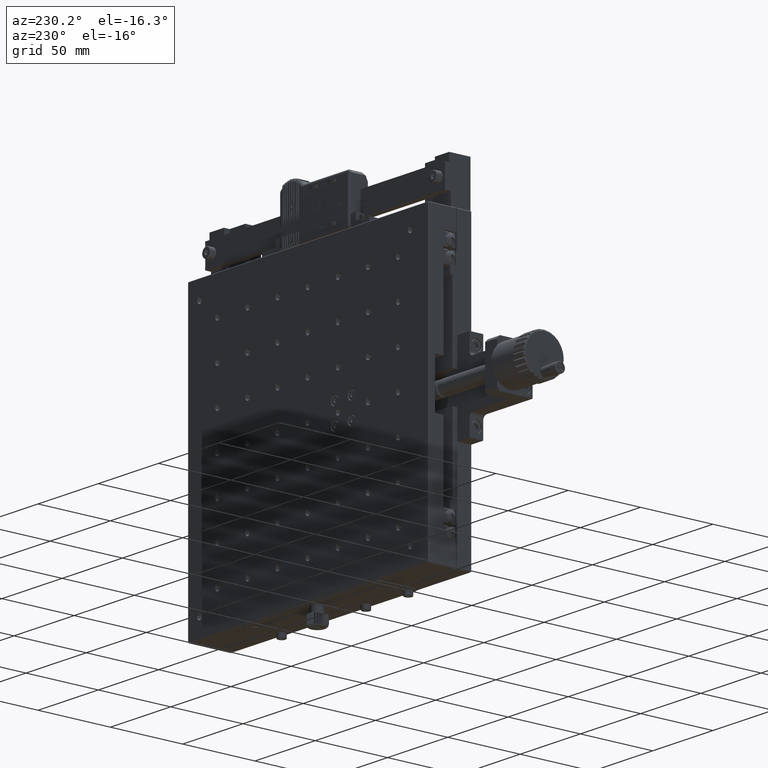
[diagram: clean part render]
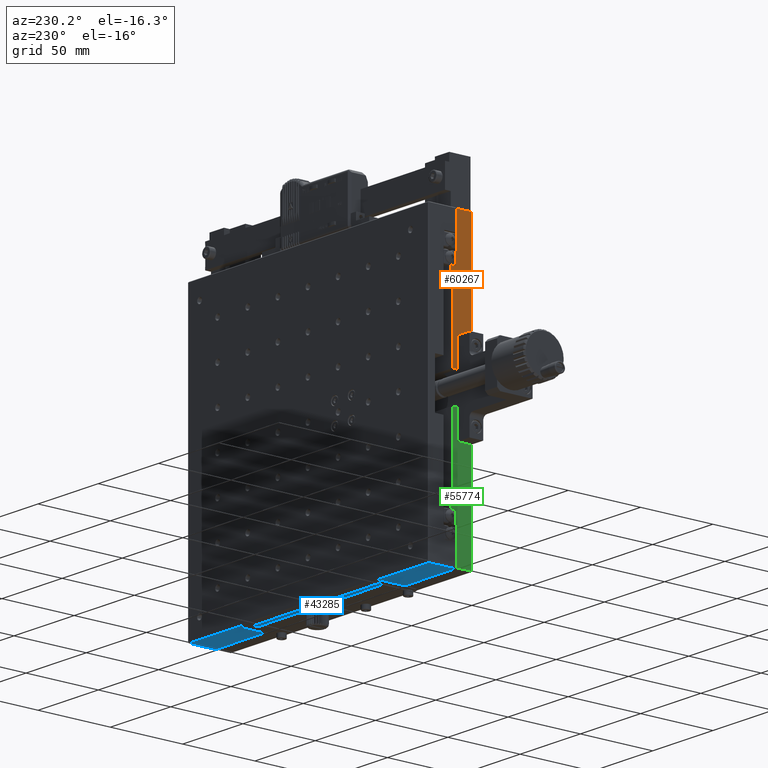
[diagram: same view with three faces highlighted in distinct colors, each labeled with its STEP entity id]
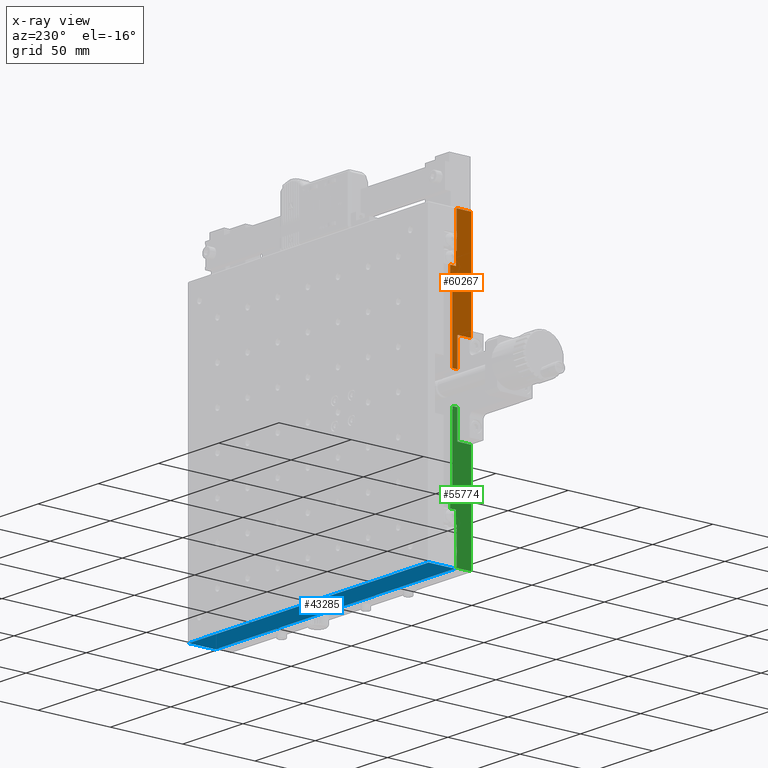
[diagram: x-ray of the same camera — body ghosted, the three highlighted faces saturated]
A machine part, auxiliary view with three faces highlighted in distinct colors.
The next image is the same camera in x-ray (body ghosted, the three faces saturated) — at least one of them is partly hidden behind the body in this view.
Their STEP definitions:

[orange] entity #60267 — the highlighted planar face has unit normal (1, 0, 0).
#1617 = DIRECTION ( 'NONE',  ( 1.000000000000000000, 0.000000000000000000, 0.000000000000000000 ) ) ;
#1638 = CARTESIAN_POINT ( 'NONE',  ( -200.0000000000000000, 11.00000000000000000, 0.000000000000000000 ) ) ;
#1938 = VECTOR ( 'NONE', #56295, 1000.000000000000000 ) ;
#2000 = LINE ( 'NONE', #58708, #4654 ) ;
#2171 = ORIENTED_EDGE ( 'NONE', *, *, #40458, .F. ) ;
#2567 = CARTESIAN_POINT ( 'NONE',  ( -200.0000000000000000, 0.4999999999999997780, 100.0000000000000000 ) ) ;
#2950 = PLANE ( 'NONE',  #22174 ) ;
#3350 = EDGE_CURVE ( 'NONE', #48882, #51860, #45151, .T. ) ;
#4654 = VECTOR ( 'NONE', #44155, 1000.000000000000000 ) ;
#4940 = EDGE_CURVE ( 'NONE', #18773, #10322, #39946, .T. ) ;
#5168 = DIRECTION ( 'NONE',  ( -0.000000000000000000, 1.000000000000000000, 0.000000000000000000 ) ) ;
#6462 = CARTESIAN_POINT ( 'NONE',  ( -200.0000000000000000, 10.50000000000000000, 75.79999999999999716 ) ) ;
#7105 = LINE ( 'NONE', #22630, #65427 ) ;
#7795 = EDGE_CURVE ( 'NONE', #55398, #40615, #7105, .T. ) ;
#7901 = CARTESIAN_POINT ( 'NONE',  ( -200.0000000000000000, 10.50000000000000000, 99.50000000000000000 ) ) ;
#7965 = ORIENTED_EDGE ( 'NONE', *, *, #62439, .F. ) ;
#8216 = ORIENTED_EDGE ( 'NONE', *, *, #3350, .F. ) ;
#9074 = VERTEX_POINT ( 'NONE', #21071 ) ;
#10322 = VERTEX_POINT ( 'NONE', #39026 ) ;
#10496 = CARTESIAN_POINT ( 'NONE',  ( -200.0000000000000000, 13.50000000000000000, 62.50000000000000000 ) ) ;
#10674 = EDGE_CURVE ( 'NONE', #34751, #48882, #29367, .T. ) ;
#11546 = LINE ( 'NONE', #20984, #43664 ) ;
#12963 = DIRECTION ( 'NONE',  ( 0.000000000000000000, 1.000000000000000000, 0.000000000000000000 ) ) ;
#13100 = ORIENTED_EDGE ( 'NONE', *, *, #38533, .F. ) ;
#13411 = FACE_OUTER_BOUND ( 'NONE', #24402, .T. ) ;
#14016 = DIRECTION ( 'NONE',  ( -0.000000000000000000, -0.000000000000000000, -1.000000000000000000 ) ) ;
#14532 = CARTESIAN_POINT ( 'NONE',  ( -200.0000000000000000, 0.000000000000000000, 10.50000000000000000 ) ) ;
#14718 = VECTOR ( 'NONE', #5168, 1000.000000000000000 ) ;
#16044 = CARTESIAN_POINT ( 'NONE',  ( -200.0000000000000000, 15.00000000000000000, 67.50000000000000000 ) ) ;
#17961 = ORIENTED_EDGE ( 'NONE', *, *, #39034, .F. ) ;
#18773 = VERTEX_POINT ( 'NONE', #16044 ) ;
#19594 = DIRECTION ( 'NONE',  ( -0.000000000000000000, 1.000000000000000000, 0.000000000000000000 ) ) ;
#19850 = CARTESIAN_POINT ( 'NONE',  ( -200.0000000000000000, 13.50000000000000000, 10.50000000000000000 ) ) ;
#20043 = CARTESIAN_POINT ( 'NONE',  ( -200.0000000000000000, 15.00000000000000000, 0.000000000000000000 ) ) ;
#20984 = CARTESIAN_POINT ( 'NONE',  ( -200.0000000000000000, 10.00000000000000000, 0.000000000000000000 ) ) ;
#21071 = CARTESIAN_POINT ( 'NONE',  ( -200.0000000000000000, 15.00000000000000000, 62.50000000000000000 ) ) ;
#22174 = AXIS2_PLACEMENT_3D ( 'NONE', #52924, #1617, #22862 ) ;
#22630 = CARTESIAN_POINT ( 'NONE',  ( -200.0000000000000000, 0.000000000000000000, 99.50000000000000000 ) ) ;
#22862 = DIRECTION ( 'NONE',  ( 0.000000000000000000, 0.000000000000000000, -1.000000000000000000 ) ) ;
#23467 = LINE ( 'NONE', #2567, #31099 ) ;
#23618 = VERTEX_POINT ( 'NONE', #33697 ) ;
#23765 = EDGE_CURVE ( 'NONE', #25570, #55398, #25891, .T. ) ;
#24402 = EDGE_LOOP ( 'NONE', ( #8216, #27441, #17961, #2171, #13100, #30898, #63004, #41077, #7965, #63269, #65424, #44456 ) ) ;
#25069 = LINE ( 'NONE', #51409, #14718 ) ;
#25570 = VERTEX_POINT ( 'NONE', #6462 ) ;
#25891 = LINE ( 'NONE', #41097, #1938 ) ;
#26923 = VECTOR ( 'NONE', #40261, 1000.000000000000000 ) ;
#27342 = DIRECTION ( 'NONE',  ( 0.000000000000000000, -1.000000000000000000, -0.000000000000000000 ) ) ;
#27441 = ORIENTED_EDGE ( 'NONE', *, *, #10674, .F. ) ;
#28136 = LINE ( 'NONE', #49052, #66435 ) ;
#29002 = CARTESIAN_POINT ( 'NONE',  ( -200.0000000000000000, 10.00000000000000000, 10.50000000000000000 ) ) ;
#29367 = LINE ( 'NONE', #14532, #31137 ) ;
#30898 = ORIENTED_EDGE ( 'NONE', *, *, #7795, .F. ) ;
#31099 = VECTOR ( 'NONE', #14016, 1000.000000000000000 ) ;
#31137 = VECTOR ( 'NONE', #19594, 1000.000000000000000 ) ;
#32907 = EDGE_CURVE ( 'NONE', #23618, #25570, #2000, .T. ) ;
#33350 = VECTOR ( 'NONE', #61570, 1000.000000000000000 ) ;
#33697 = CARTESIAN_POINT ( 'NONE',  ( -200.0000000000000000, 11.00000000000000000, 75.79999999999999716 ) ) ;
#34751 = VERTEX_POINT ( 'NONE', #29002 ) ;
#35562 = VERTEX_POINT ( 'NONE', #37231 ) ;
#36401 = DIRECTION ( 'NONE',  ( -0.000000000000000000, -0.000000000000000000, 1.000000000000000000 ) ) ;
#37231 = CARTESIAN_POINT ( 'NONE',  ( -200.0000000000000000, 0.5000000000000002220, 29.50000000000000000 ) ) ;
#38533 = EDGE_CURVE ( 'NONE', #40615, #35562, #23467, .T. ) ;
#39026 = CARTESIAN_POINT ( 'NONE',  ( -200.0000000000000000, 11.00000000000000000, 67.50000000000000000 ) ) ;
#39034 = EDGE_CURVE ( 'NONE', #66359, #34751, #11546, .T. ) ;
#39946 = LINE ( 'NONE', #60865, #26923 ) ;
#40261 = DIRECTION ( 'NONE',  ( 0.000000000000000000, -1.000000000000000000, -0.000000000000000000 ) ) ;
#40458 = EDGE_CURVE ( 'NONE', #35562, #66359, #25069, .T. ) ;
#40615 = VERTEX_POINT ( 'NONE', #56830 ) ;
#41077 = ORIENTED_EDGE ( 'NONE', *, *, #32907, .F. ) ;
#41097 = CARTESIAN_POINT ( 'NONE',  ( -200.0000000000000000, 10.50000000000000000, 0.000000000000000000 ) ) ;
#42806 = LINE ( 'NONE', #1638, #59060 ) ;
#43473 = EDGE_CURVE ( 'NONE', #9074, #18773, #66313, .T. ) ;
#43664 = VECTOR ( 'NONE', #47653, 1000.000000000000000 ) ;
#44155 = DIRECTION ( 'NONE',  ( 0.000000000000000000, -1.000000000000000000, -0.000000000000000000 ) ) ;
#44456 = ORIENTED_EDGE ( 'NONE', *, *, #59113, .F. ) ;
#45151 = LINE ( 'NONE', #45478, #45665 ) ;
#45478 = CARTESIAN_POINT ( 'NONE',  ( -200.0000000000000000, 13.50000000000000000, 0.000000000000000000 ) ) ;
#45665 = VECTOR ( 'NONE', #65104, 1000.000000000000000 ) ;
#47653 = DIRECTION ( 'NONE',  ( 0.000000000000000000, 0.000000000000000000, -1.000000000000000000 ) ) ;
#48882 = VERTEX_POINT ( 'NONE', #19850 ) ;
#49052 = CARTESIAN_POINT ( 'NONE',  ( -200.0000000000000000, 13.50000000000000000, 62.50000000000000000 ) ) ;
#51409 = CARTESIAN_POINT ( 'NONE',  ( -200.0000000000000000, 0.000000000000000000, 29.50000000000000355 ) ) ;
#51860 = VERTEX_POINT ( 'NONE', #10496 ) ;
#52924 = CARTESIAN_POINT ( 'NONE',  ( -200.0000000000000000, 0.000000000000000000, 0.000000000000000000 ) ) ;
#55398 = VERTEX_POINT ( 'NONE', #7901 ) ;
#56295 = DIRECTION ( 'NONE',  ( -0.000000000000000000, -0.000000000000000000, 1.000000000000000000 ) ) ;
#56830 = CARTESIAN_POINT ( 'NONE',  ( -200.0000000000000000, 0.4999999999999973910, 99.50000000000000000 ) ) ;
#58708 = CARTESIAN_POINT ( 'NONE',  ( -200.0000000000000000, 11.00000000000000000, 75.79999999999999716 ) ) ;
#59060 = VECTOR ( 'NONE', #36401, 1000.000000000000000 ) ;
#59113 = EDGE_CURVE ( 'NONE', #51860, #9074, #28136, .T. ) ;
#60267 = ADVANCED_FACE ( 'NONE', ( #13411 ), #2950, .F. ) ;
#60865 = CARTESIAN_POINT ( 'NONE',  ( -200.0000000000000000, 0.000000000000000000, 67.50000000000000000 ) ) ;
#61570 = DIRECTION ( 'NONE',  ( -0.000000000000000000, -0.000000000000000000, 1.000000000000000000 ) ) ;
#62439 = EDGE_CURVE ( 'NONE', #10322, #23618, #42806, .T. ) ;
#63004 = ORIENTED_EDGE ( 'NONE', *, *, #23765, .F. ) ;
#63269 = ORIENTED_EDGE ( 'NONE', *, *, #4940, .F. ) ;
#64498 = CARTESIAN_POINT ( 'NONE',  ( -200.0000000000000000, 10.00000000000000000, 29.50000000000000000 ) ) ;
#65104 = DIRECTION ( 'NONE',  ( -0.000000000000000000, -0.000000000000000000, 1.000000000000000000 ) ) ;
#65424 = ORIENTED_EDGE ( 'NONE', *, *, #43473, .F. ) ;
#65427 = VECTOR ( 'NONE', #27342, 1000.000000000000000 ) ;
#66313 = LINE ( 'NONE', #20043, #33350 ) ;
#66359 = VERTEX_POINT ( 'NONE', #64498 ) ;
#66435 = VECTOR ( 'NONE', #12963, 1000.000000000000000 ) ;

[blue] entity #43285 — the highlighted planar face has unit normal (0, 0, -1).
#3 = EDGE_CURVE ( 'NONE', #61326, #22040, #36577, .T. ) ;
#118 = VERTEX_POINT ( 'NONE', #20377 ) ;
#3464 = EDGE_LOOP ( 'NONE', ( #53919, #21356, #56099, #31492 ) ) ;
#5798 = VECTOR ( 'NONE', #17804, 1000.000000000000000 ) ;
#7347 = CARTESIAN_POINT ( 'NONE',  ( -100.0000000000000000, 23.50000000000000000, -100.0000000000000000 ) ) ;
#9135 = LINE ( 'NONE', #13880, #61821 ) ;
#9940 = DIRECTION ( 'NONE',  ( 1.000000000000000000, 0.000000000000000000, 0.000000000000000000 ) ) ;
#10760 = DIRECTION ( 'NONE',  ( -1.000000000000000000, 0.000000000000000000, -0.000000000000000000 ) ) ;
#11080 = FACE_BOUND ( 'NONE', #24509, .T. ) ;
#12092 = DIRECTION ( 'NONE',  ( -0.000000000000000000, -0.000000000000000000, 1.000000000000000000 ) ) ;
#12720 = CARTESIAN_POINT ( 'NONE',  ( -0.4999999999999848455, 29.50000000000000355, -100.0000000000000000 ) ) ;
#13880 = CARTESIAN_POINT ( 'NONE',  ( -199.5000000000000000, 11.00000000000000000, -100.0000000000000000 ) ) ;
#17804 = DIRECTION ( 'NONE',  ( -1.000000000000000000, 0.000000000000000000, -0.000000000000000000 ) ) ;
#20377 = CARTESIAN_POINT ( 'NONE',  ( -102.0000000000000142, 23.50000000000000000, -100.0000000000000000 ) ) ;
#20714 = CARTESIAN_POINT ( 'NONE',  ( -200.0000000000000000, 29.50000000000000000, -100.0000000000000000 ) ) ;
#20865 = CARTESIAN_POINT ( 'NONE',  ( -200.0000000000000000, 11.00000000000000000, -100.0000000000000000 ) ) ;
#21356 = ORIENTED_EDGE ( 'NONE', *, *, #42824, .T. ) ;
#21451 = AXIS2_PLACEMENT_3D ( 'NONE', #20865, #32652, #10760 ) ;
#22040 = VERTEX_POINT ( 'NONE', #12720 ) ;
#22185 = LINE ( 'NONE', #25991, #5798 ) ;
#22625 = CARTESIAN_POINT ( 'NONE',  ( -0.5000000000000004441, 11.00000000000000000, -100.0000000000000000 ) ) ;
#23281 = CIRCLE ( 'NONE', #41586, 2.000000000000001776 ) ;
#24509 = EDGE_LOOP ( 'NONE', ( #43493 ) ) ;
#25991 = CARTESIAN_POINT ( 'NONE',  ( -200.0000000000000000, 11.00000000000000000, -100.0000000000000000 ) ) ;
#31492 = ORIENTED_EDGE ( 'NONE', *, *, #31544, .T. ) ;
#31544 = EDGE_CURVE ( 'NONE', #64605, #61326, #9135, .T. ) ;
#31984 = PLANE ( 'NONE',  #21451 ) ;
#32652 = DIRECTION ( 'NONE',  ( 0.000000000000000000, 0.000000000000000000, -1.000000000000000000 ) ) ;
#33295 = VERTEX_POINT ( 'NONE', #64553 ) ;
#33569 = EDGE_CURVE ( 'NONE', #33295, #64605, #22185, .T. ) ;
#35553 = CARTESIAN_POINT ( 'NONE',  ( -199.5000000000000000, 11.00000000000000000, -100.0000000000000000 ) ) ;
#36577 = LINE ( 'NONE', #20714, #42940 ) ;
#36726 = CARTESIAN_POINT ( 'NONE',  ( -199.5000000000000000, 29.50000000000000355, -100.0000000000000000 ) ) ;
#39857 = DIRECTION ( 'NONE',  ( 0.000000000000000000, 1.000000000000000000, 0.000000000000000000 ) ) ;
#41586 = AXIS2_PLACEMENT_3D ( 'NONE', #7347, #12092, #58997 ) ;
#42824 = EDGE_CURVE ( 'NONE', #22040, #33295, #57740, .T. ) ;
#42940 = VECTOR ( 'NONE', #9940, 1000.000000000000000 ) ;
#43285 = ADVANCED_FACE ( 'NONE', ( #48204, #11080 ), #31984, .T. ) ;
#43493 = ORIENTED_EDGE ( 'NONE', *, *, #60244, .T. ) ;
#46223 = VECTOR ( 'NONE', #63157, 1000.000000000000000 ) ;
#48204 = FACE_OUTER_BOUND ( 'NONE', #3464, .T. ) ;
#53919 = ORIENTED_EDGE ( 'NONE', *, *, #3, .T. ) ;
#56099 = ORIENTED_EDGE ( 'NONE', *, *, #33569, .T. ) ;
#57740 = LINE ( 'NONE', #22625, #46223 ) ;
#58997 = DIRECTION ( 'NONE',  ( -1.000000000000000000, 0.000000000000000000, 0.000000000000000000 ) ) ;
#60244 = EDGE_CURVE ( 'NONE', #118, #118, #23281, .T. ) ;
#61326 = VERTEX_POINT ( 'NONE', #36726 ) ;
#61821 = VECTOR ( 'NONE', #39857, 1000.000000000000000 ) ;
#63157 = DIRECTION ( 'NONE',  ( -0.000000000000000000, -1.000000000000000000, -0.000000000000000000 ) ) ;
#64553 = CARTESIAN_POINT ( 'NONE',  ( -0.4999999999999588107, 11.00000000000000000, -99.99999999999998579 ) ) ;
#64605 = VERTEX_POINT ( 'NONE', #35553 ) ;

[green] entity #55774 — the highlighted planar face has unit normal (1, 0, 0).
#157 = CARTESIAN_POINT ( 'NONE',  ( -200.0000000000000000, 11.00000000000000000, 0.000000000000000000 ) ) ;
#304 = CARTESIAN_POINT ( 'NONE',  ( -200.0000000000000000, 10.00000000000000000, 0.000000000000000000 ) ) ;
#1236 = LINE ( 'NONE', #26198, #14208 ) ;
#2459 = ORIENTED_EDGE ( 'NONE', *, *, #20374, .F. ) ;
#2880 = DIRECTION ( 'NONE',  ( 0.000000000000000000, -1.000000000000000000, -0.000000000000000000 ) ) ;
#3302 = CARTESIAN_POINT ( 'NONE',  ( -200.0000000000000000, 15.00000000000000000, 0.000000000000000000 ) ) ;
#4417 = CARTESIAN_POINT ( 'NONE',  ( -200.0000000000000000, 0.5000000000000002220, -99.50000000000000000 ) ) ;
#5015 = LINE ( 'NONE', #20544, #59885 ) ;
#5574 = CARTESIAN_POINT ( 'NONE',  ( -200.0000000000000000, 13.50000000000000000, -10.50000000000000178 ) ) ;
#5741 = DIRECTION ( 'NONE',  ( 0.000000000000000000, -1.000000000000000000, -0.000000000000000000 ) ) ;
#6306 = CARTESIAN_POINT ( 'NONE',  ( -200.0000000000000000, 0.000000000000000000, -99.50000000000000000 ) ) ;
#6827 = EDGE_CURVE ( 'NONE', #25353, #62591, #55652, .T. ) ;
#7546 = VERTEX_POINT ( 'NONE', #33817 ) ;
#7856 = CARTESIAN_POINT ( 'NONE',  ( -200.0000000000000000, 13.50000000000000000, -62.50000000000000000 ) ) ;
#8048 = VECTOR ( 'NONE', #54836, 1000.000000000000000 ) ;
#10124 = LINE ( 'NONE', #304, #59800 ) ;
#10504 = LINE ( 'NONE', #11156, #12576 ) ;
#11156 = CARTESIAN_POINT ( 'NONE',  ( -200.0000000000000000, 0.000000000000000000, -29.50000000000000355 ) ) ;
#12483 = CARTESIAN_POINT ( 'NONE',  ( -200.0000000000000000, 15.00000000000000000, -67.50000000000000000 ) ) ;
#12576 = VECTOR ( 'NONE', #5741, 1000.000000000000000 ) ;
#13010 = CARTESIAN_POINT ( 'NONE',  ( -200.0000000000000000, 0.000000000000000000, -67.50000000000000000 ) ) ;
#13110 = DIRECTION ( 'NONE',  ( -0.000000000000000000, -0.000000000000000000, 1.000000000000000000 ) ) ;
#13522 = ORIENTED_EDGE ( 'NONE', *, *, #6827, .F. ) ;
#13547 = VERTEX_POINT ( 'NONE', #5574 ) ;
#13884 = DIRECTION ( 'NONE',  ( 1.000000000000000000, 0.000000000000000000, 0.000000000000000000 ) ) ;
#14208 = VECTOR ( 'NONE', #42399, 1000.000000000000000 ) ;
#15158 = CARTESIAN_POINT ( 'NONE',  ( -200.0000000000000000, 10.50000000000000000, -75.79999999999999716 ) ) ;
#16093 = ORIENTED_EDGE ( 'NONE', *, *, #56681, .F. ) ;
#18942 = FACE_OUTER_BOUND ( 'NONE', #19781, .T. ) ;
#19254 = DIRECTION ( 'NONE',  ( 0.000000000000000000, -1.000000000000000000, -0.000000000000000000 ) ) ;
#19781 = EDGE_LOOP ( 'NONE', ( #2459, #66096, #25700, #16093, #64428, #26822, #26667, #13522, #30894, #47719, #23952, #25456 ) ) ;
#20374 = EDGE_CURVE ( 'NONE', #40874, #31317, #10124, .T. ) ;
#20544 = CARTESIAN_POINT ( 'NONE',  ( -200.0000000000000000, 10.50000000000000000, 0.000000000000000000 ) ) ;
#23885 = EDGE_CURVE ( 'NONE', #37992, #7546, #57967, .T. ) ;
#23952 = ORIENTED_EDGE ( 'NONE', *, *, #29336, .F. ) ;
#24301 = LINE ( 'NONE', #44901, #58372 ) ;
#24856 = LINE ( 'NONE', #45440, #66148 ) ;
#25353 = VERTEX_POINT ( 'NONE', #44310 ) ;
#25456 = ORIENTED_EDGE ( 'NONE', *, *, #59615, .F. ) ;
#25700 = ORIENTED_EDGE ( 'NONE', *, *, #56294, .F. ) ;
#26198 = CARTESIAN_POINT ( 'NONE',  ( -200.0000000000000000, 0.4999999999999997780, 100.0000000000000000 ) ) ;
#26550 = DIRECTION ( 'NONE',  ( -0.000000000000000000, 1.000000000000000000, 0.000000000000000000 ) ) ;
#26667 = ORIENTED_EDGE ( 'NONE', *, *, #51585, .F. ) ;
#26822 = ORIENTED_EDGE ( 'NONE', *, *, #33937, .F. ) ;
#27819 = VECTOR ( 'NONE', #13110, 1000.000000000000000 ) ;
#29160 = EDGE_CURVE ( 'NONE', #13547, #40874, #24301, .T. ) ;
#29336 = EDGE_CURVE ( 'NONE', #53379, #37992, #1236, .T. ) ;
#30194 = DIRECTION ( 'NONE',  ( -0.000000000000000000, -0.000000000000000000, 1.000000000000000000 ) ) ;
#30894 = ORIENTED_EDGE ( 'NONE', *, *, #34944, .F. ) ;
#31317 = VERTEX_POINT ( 'NONE', #45998 ) ;
#32397 = VERTEX_POINT ( 'NONE', #50786 ) ;
#33484 = CARTESIAN_POINT ( 'NONE',  ( -200.0000000000000000, 10.00000000000000000, -10.50000000000000000 ) ) ;
#33817 = CARTESIAN_POINT ( 'NONE',  ( -200.0000000000000000, 10.50000000000000178, -99.50000000000000000 ) ) ;
#33937 = EDGE_CURVE ( 'NONE', #32397, #37171, #34554, .T. ) ;
#34460 = DIRECTION ( 'NONE',  ( 0.000000000000000000, 0.000000000000000000, -1.000000000000000000 ) ) ;
#34554 = LINE ( 'NONE', #13010, #8048 ) ;
#34944 = EDGE_CURVE ( 'NONE', #7546, #25353, #5015, .T. ) ;
#35664 = CARTESIAN_POINT ( 'NONE',  ( -200.0000000000000000, 15.00000000000000000, -62.50000000000000000 ) ) ;
#35686 = VERTEX_POINT ( 'NONE', #7856 ) ;
#35718 = DIRECTION ( 'NONE',  ( 0.000000000000000000, 1.000000000000000000, 0.000000000000000000 ) ) ;
#37171 = VERTEX_POINT ( 'NONE', #12483 ) ;
#37992 = VERTEX_POINT ( 'NONE', #4417 ) ;
#39529 = PLANE ( 'NONE',  #62870 ) ;
#40800 = DIRECTION ( 'NONE',  ( -0.000000000000000000, -0.000000000000000000, 1.000000000000000000 ) ) ;
#40874 = VERTEX_POINT ( 'NONE', #33484 ) ;
#41482 = DIRECTION ( 'NONE',  ( 0.000000000000000000, 0.000000000000000000, -1.000000000000000000 ) ) ;
#42399 = DIRECTION ( 'NONE',  ( -0.000000000000000000, -0.000000000000000000, -1.000000000000000000 ) ) ;
#43465 = CARTESIAN_POINT ( 'NONE',  ( -200.0000000000000000, 11.00000000000000000, -75.79999999999999716 ) ) ;
#44310 = CARTESIAN_POINT ( 'NONE',  ( -200.0000000000000000, 10.50000000000000000, -75.79999999999999716 ) ) ;
#44901 = CARTESIAN_POINT ( 'NONE',  ( -200.0000000000000000, 0.000000000000000000, -10.50000000000000000 ) ) ;
#45021 = VERTEX_POINT ( 'NONE', #35664 ) ;
#45440 = CARTESIAN_POINT ( 'NONE',  ( -200.0000000000000000, 13.50000000000000000, 0.000000000000000000 ) ) ;
#45998 = CARTESIAN_POINT ( 'NONE',  ( -200.0000000000000000, 10.00000000000000000, -29.50000000000000711 ) ) ;
#46409 = LINE ( 'NONE', #157, #52134 ) ;
#47719 = ORIENTED_EDGE ( 'NONE', *, *, #23885, .F. ) ;
#48085 = VECTOR ( 'NONE', #35718, 1000.000000000000000 ) ;
#49110 = CARTESIAN_POINT ( 'NONE',  ( -200.0000000000000000, 15.00000000000000000, -62.50000000000000000 ) ) ;
#49986 = VECTOR ( 'NONE', #2880, 1000.000000000000000 ) ;
#50786 = CARTESIAN_POINT ( 'NONE',  ( -200.0000000000000000, 11.00000000000000000, -67.50000000000000000 ) ) ;
#51585 = EDGE_CURVE ( 'NONE', #62591, #32397, #46409, .T. ) ;
#52134 = VECTOR ( 'NONE', #30194, 1000.000000000000000 ) ;
#53379 = VERTEX_POINT ( 'NONE', #63103 ) ;
#53955 = LINE ( 'NONE', #3302, #27819 ) ;
#54748 = VECTOR ( 'NONE', #26550, 1000.000000000000000 ) ;
#54836 = DIRECTION ( 'NONE',  ( -0.000000000000000000, 1.000000000000000000, 0.000000000000000000 ) ) ;
#55652 = LINE ( 'NONE', #15158, #48085 ) ;
#55774 = ADVANCED_FACE ( 'NONE', ( #18942 ), #39529, .F. ) ;
#56294 = EDGE_CURVE ( 'NONE', #35686, #13547, #24856, .T. ) ;
#56681 = EDGE_CURVE ( 'NONE', #45021, #35686, #64986, .T. ) ;
#57967 = LINE ( 'NONE', #6306, #54748 ) ;
#58372 = VECTOR ( 'NONE', #19254, 1000.000000000000000 ) ;
#59615 = EDGE_CURVE ( 'NONE', #31317, #53379, #10504, .T. ) ;
#59800 = VECTOR ( 'NONE', #41482, 1000.000000000000000 ) ;
#59885 = VECTOR ( 'NONE', #40800, 1000.000000000000000 ) ;
#60127 = CARTESIAN_POINT ( 'NONE',  ( -200.0000000000000000, 0.000000000000000000, 0.000000000000000000 ) ) ;
#62591 = VERTEX_POINT ( 'NONE', #43465 ) ;
#62593 = EDGE_CURVE ( 'NONE', #37171, #45021, #53955, .T. ) ;
#62870 = AXIS2_PLACEMENT_3D ( 'NONE', #60127, #13884, #34460 ) ;
#63103 = CARTESIAN_POINT ( 'NONE',  ( -200.0000000000000000, 0.5000000000000000000, -29.50000000000000355 ) ) ;
#64428 = ORIENTED_EDGE ( 'NONE', *, *, #62593, .F. ) ;
#64986 = LINE ( 'NONE', #49110, #49986 ) ;
#66096 = ORIENTED_EDGE ( 'NONE', *, *, #29160, .F. ) ;
#66148 = VECTOR ( 'NONE', #66739, 1000.000000000000000 ) ;
#66739 = DIRECTION ( 'NONE',  ( -0.000000000000000000, -0.000000000000000000, 1.000000000000000000 ) ) ;